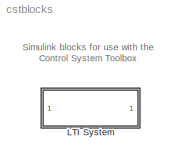
MODEL cstblocks
KIND library
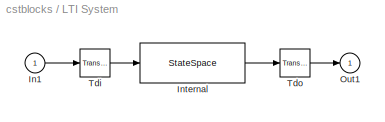
BLOCK [SubSystem] LTI System
  MaskCallbackString = ltimask('MaskLTICallback',gcb);|
  MaskDescription = The LTI System block accepts both continuous and discrete LTI models as defined in the Control System Toolbox. Transfer function, state-space, and zero-pole-gain formats are all supported in this block.\n\nNote: Initial states are only meaningful for state-space systems.
  MaskDisplay = disp(sysname)
  MaskEnableString = on,off
  MaskHelp = The LTI System block accepts any of the three standard LTI models described in the Control System Toolbox: transfer function, zero/pole/gain, or state space. Internally, LTI models will be converted to their state space equivalent for evaluation.\n<p>\nIn the editable text box labeled <b>LTI System Variable</b>, enter a valid LTI model.\n<p>\nIn the editable text box labeled <b>Initial States</b> ...<+127ch>
  MaskIconFrame = on
  MaskIconOpaque = on
  MaskIconRotate = none
  MaskIconUnits = autoscale
  MaskInitialization = [A,B,C,D,Ts,Tdi,Tdo,X0,sysname]=ltimask('Initialize',gcb,sys,IC);\nltimask('UpdateDiagram',gcb,Ts);
  MaskPromptString = LTI system variable|Initial states   (state-space only)
  MaskSelfModifiable = on
  MaskStyleString = edit,edit
  MaskTabNameString = ,
  MaskToolTipString = on,on
  MaskTunableValueString = on,on
  MaskType = LTI Block
  MaskValueString = tf(1,[1 1])|[]
  MaskVarAliasString = ,
  MaskVariables = sys=@1;IC=@2;
  MaskVisibilityString = on,on
  MinAlgLoopOccurrences = off
  Ports = [1, 1]
  PropExecContextAcrossSSBoundary = on
  RTWSystemCode = Auto
  TreatAsAtomicUnit = off
BLOCK [Inport] LTI System/In1
  IconDisplay = Port number
  LatchInput = off
BLOCK [StateSpace] LTI System/Internal
  A = A
  B = B
  C = C
  D = D
  X0 = X0
BLOCK [Outport] LTI System/Out1
  BusOutputAsStruct = off
  IconDisplay = Port number
  InitialOutput = 0
BLOCK [Reference] LTI System/Tdi  REF=cstextras/Transport Delay\n(masked)  (lib defined in mdl_a5737024c95e)
  Ports = [1, 1]
  ShowPortLabels = on
  SourceBlock = cstextras/Transport Delay\n(masked)
  SourceType = Transport Delay (masked)
  Tag = InputDelayBlock
  Td = Tdi
  bufsize = 1024
  u0 = 0
BLOCK [Reference] LTI System/Tdo  REF=cstextras/Transport Delay\n(masked)  (lib defined in mdl_a5737024c95e)
  Ports = [1, 1]
  ShowPortLabels = on
  SourceBlock = cstextras/Transport Delay\n(masked)
  SourceType = Transport Delay (masked)
  Tag = OutputDelayBlock
  Td = Tdo
  bufsize = 1024
  u0 = 0
ANNOTATION (root): Simulink blocks for use with the\nControl System Toolbox
LINE LTI System/In1:1 -> LTI System/Tdi:1
LINE LTI System/Internal:1 -> LTI System/Tdo:1
LINE LTI System/Tdi:1 -> LTI System/Internal:1
LINE LTI System/Tdo:1 -> LTI System/Out1:1
